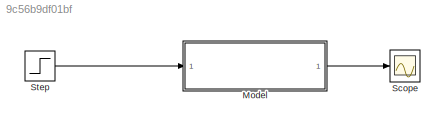
MODEL slx_9c56b9df01bf
KIND model
CONFIG AbsTol = auto
CONFIG EnableMultiTasking = off
CONFIG FixedStep = auto
CONFIG MaxStep = auto
CONFIG MinStep = auto
CONFIG RelTol = 1e-3
CONFIG SampleTimeConstraint = Unconstrained
CONFIG SolverName = VariableStepAuto
CONFIG StartTime = 0.0
CONFIG StopTime = 6000
BLOCK [ModelReference] Model
  ModelNameDialog = heating_plant_reference.slx
  ModelReferenceVersion = 1.6
BLOCK [Scope] Scope
  ActiveDisplayYMaximum = 29.627456037574376
  ActiveDisplayYMinimum = 13.346972459340764
  ContainerLayout = {"WindowBounds":[955,1363,568,766]}
  Floating = off
  GraphicalSettings = {"Style":{"BackgroundColor":[0.12941176470588237,0.12941176470588237,0.12941176470588237],"AxesColor":[0.07058823529411765,0.07058823529411765,0.07058823529411765],"LabelsColor":[0.8509803921568627,0.8509803921568627,0.8509803921568627],"PreserveColors":false,"Visible":[true],"LineStyle":["-"],"LineWidth":[1.5],"BarWidth":[0.9],"LineColor":["auto"],"LineFaceAlpha":[1],"LineEdgeAlpha":[1],"Marker":...<+2022ch>
  MultipleDisplayCache = [{"MaxYLimMag":29.627456037574376,"MaxYLimReal":29.627456037574376,"MinYLimMag":13.346972459340764,"MinYLimReal":13.346972459340764,"PlotAsMagnitudePhase":false,"ShowGrid":true,"ShowLegend":false,"Title":"%<SignalLabel>","YLabel":""}]
  NumInputPorts = 1
  Visible = on
  WasSavedAsWebScope = on
BLOCK [Step] Step
  SampleTime = 0
LINE Model:1 -> Scope:1
LINE Step:1 -> Model:1
